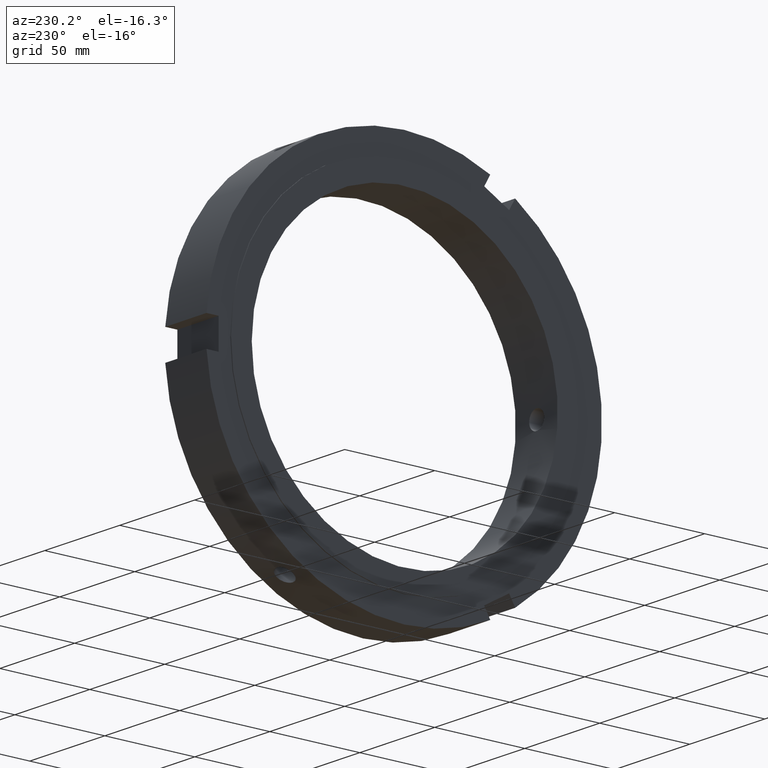
[diagram: clean part render]
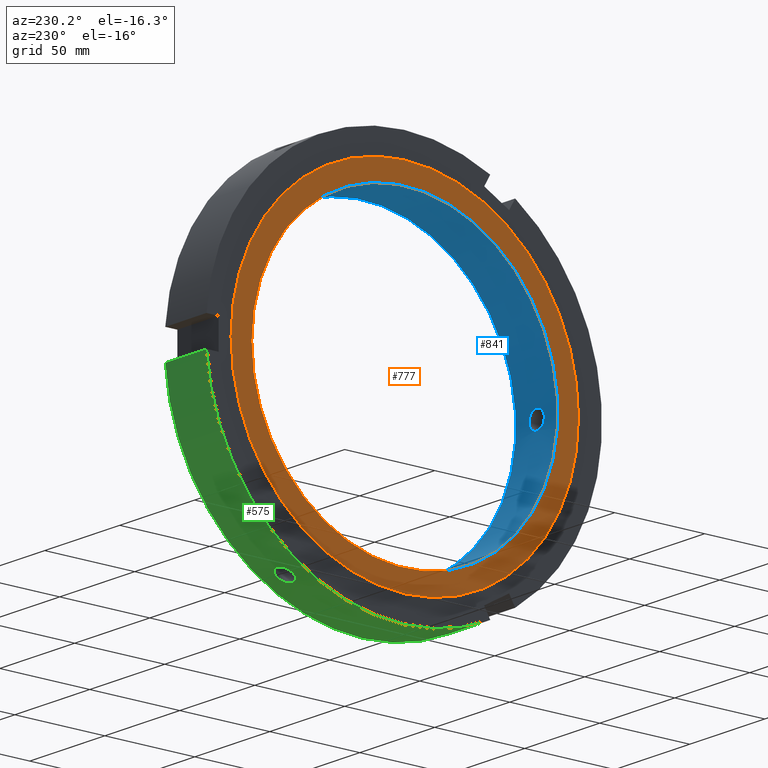
[diagram: same view with three faces highlighted in distinct colors, each labeled with its STEP entity id]
A machine part, auxiliary view with three faces highlighted in distinct colors.
Their STEP definitions:

[orange] entity #777 — the highlighted planar face has unit normal (-1, 0, 0).
#750=CARTESIAN_POINT('',(-2.699753E-014,90.750000000000000,0.0));
#751=DIRECTION('',(-1.0,0.0,0.0));
#752=DIRECTION('',(0.0,0.0,1.0));
#753=AXIS2_PLACEMENT_3D('',#750,#751,#752);
#754=PLANE('',#753);
#755=CARTESIAN_POINT('',(-2.886580E-014,96.500000000000000,0.0));
#756=VERTEX_POINT('',#755);
#757=CARTESIAN_POINT('',(-2.886580E-014,0.0,0.0));
#758=DIRECTION('',(1.0,0.0,0.0));
#759=DIRECTION('',(0.0,1.0,0.0));
#760=AXIS2_PLACEMENT_3D('',#757,#758,#759);
#761=CIRCLE('',#760,96.500000000000000);
#762=EDGE_CURVE('',#756,#756,#761,.T.);
#763=ORIENTED_EDGE('',*,*,#762,.F.);
#764=EDGE_LOOP('',(#763));
#765=FACE_OUTER_BOUND('',#764,.T.);
#766=CARTESIAN_POINT('',(-2.512926E-014,85.0,0.0));
#767=VERTEX_POINT('',#766);
#768=CARTESIAN_POINT('',(-2.512747E-014,0.0,0.0));
#769=DIRECTION('',(1.0,0.0,0.0));
#770=DIRECTION('',(0.0,1.0,0.0));
#771=AXIS2_PLACEMENT_3D('',#768,#769,#770);
#772=CIRCLE('',#771,85.0);
#773=EDGE_CURVE('',#767,#767,#772,.T.);
#774=ORIENTED_EDGE('',*,*,#773,.T.);
#775=EDGE_LOOP('',(#774));
#776=FACE_BOUND('',#775,.T.);
#777=ADVANCED_FACE('',(#765,#776),#754,.T.);

[blue] entity #841 — the highlighted cylindrical surface (bore or boss wall) has radius 85 mm, axis along (1, 0, 0).
#216=CARTESIAN_POINT('',(13.999999999999979,46.800863403901978,70.955473253649060));
#217=VERTEX_POINT('',#216);
#218=CARTESIAN_POINT('',(13.999999999999977,46.800863403901971,70.955473253649075));
#219=CARTESIAN_POINT('',(13.365373405889859,46.800863403901971,70.955473253649075));
#220=CARTESIAN_POINT('',(12.688548186485264,46.694924973786485,71.025704330470830));
#221=CARTESIAN_POINT('',(11.443637708133036,46.262478584167241,71.308132559299423));
#222=CARTESIAN_POINT('',(10.875539751588633,45.935773196720234,71.519971297160197));
#223=CARTESIAN_POINT('',(9.978439307261642,45.177733098731082,72.001208221922468));
#224=CARTESIAN_POINT('',(9.589584629192579,44.695790524823451,72.302655281288466));
#225=CARTESIAN_POINT('',(9.073860837126688,43.631831863610628,72.949646329413042));
#226=CARTESIAN_POINT('',(8.946999999999981,43.049602520198327,73.294846158693474));
#227=CARTESIAN_POINT('',(8.946999999999978,41.950397479801723,73.929472484661034));
#228=CARTESIAN_POINT('',(9.073860837126691,41.360330986556654,74.261097972244627));
#229=CARTESIAN_POINT('',(9.589584629192586,40.268040972253239,74.859017677369124));
#230=CARTESIAN_POINT('',(9.978439307261640,39.766008873992369,75.125668659855393));
#231=CARTESIAN_POINT('',(10.875539751588629,38.970225422914552,75.541532179420102));
#232=CARTESIAN_POINT('',(11.443637708133032,38.623415000698017,75.718547975572065));
#233=CARTESIAN_POINT('',(12.688548186485267,38.162601784976985,75.951843420342911));
#234=CARTESIAN_POINT('',(13.365373405889859,38.048810673256426,76.008473253649072));
#235=CARTESIAN_POINT('',(14.634626594110101,38.048810673256426,76.008473253649072));
#236=CARTESIAN_POINT('',(15.311451813514687,38.162601784976985,75.951843420342925));
#237=CARTESIAN_POINT('',(16.556362291866918,38.623415000698003,75.718547975572079));
#238=CARTESIAN_POINT('',(17.124460248411324,38.970225422914552,75.541532179420102));
#239=CARTESIAN_POINT('',(18.021560692738316,39.766008873992369,75.125668659855393));
#240=CARTESIAN_POINT('',(18.410415370807375,40.268040972253246,74.859017677369110));
#241=CARTESIAN_POINT('',(18.926139162873270,41.360330986556662,74.261097972244613));
#242=CARTESIAN_POINT('',(19.052999999999976,41.950397479801723,73.929472484661034));
#243=CARTESIAN_POINT('',(19.052999999999976,43.049602520198327,73.294846158693474));
#244=CARTESIAN_POINT('',(18.926139162873270,43.631831863610643,72.949646329413028));
#245=CARTESIAN_POINT('',(18.410415370807371,44.695790524823458,72.302655281288452));
#246=CARTESIAN_POINT('',(18.021560692738319,45.177733098731082,72.001208221922468));
#247=CARTESIAN_POINT('',(17.124460248411324,45.935773196720234,71.519971297160197));
#248=CARTESIAN_POINT('',(16.556362291866922,46.262478584167241,71.308132559299423));
#249=CARTESIAN_POINT('',(15.311451813514694,46.694924973786485,71.025704330470830));
#250=CARTESIAN_POINT('',(14.634626594110099,46.800863403901971,70.955473253649075));
#251=CARTESIAN_POINT('',(13.999999999999979,46.800863403901971,70.955473253649075));
#252=B_SPLINE_CURVE_WITH_KNOTS('',3,(#218,#219,#220,#221,#222,#223,#224,#225,#226,#227,#228,#229,#230,#231,#232,#233,#234,#235,#236,#237,#238,#239,#240,#241,#242,#243,#244,#245,#246,#247,#248,#249,#250,#251),.UNSPECIFIED.,.T.,.U.,(4,2,2,2,2,2,2,2,2,2,2,2,2,2,2,2,4),(0.0,0.190387978233036,0.380775956466072,0.571163854256343,0.761551752046615,0.951939649836887,1.142327547627159,1.332715525860195,1.523103504093231,1.713491482326267,1.903879460559303,2.094267358349575,2.284655256139847,2.475043153930119,2.665431051720390,2.855819029953426,3.046207008186462),.UNSPECIFIED.);
#253=EDGE_CURVE('',#217,#217,#252,.T.);
#406=CARTESIAN_POINT('',(13.999999999999979,38.048810673256391,-76.008473253649086));
#407=VERTEX_POINT('',#406);
#408=CARTESIAN_POINT('',(13.999999999999979,38.048810673256398,-76.008473253649086));
#409=CARTESIAN_POINT('',(13.365373405889859,38.048810673256398,-76.008473253649086));
#410=CARTESIAN_POINT('',(12.688548186485258,38.162601784976935,-75.951843420342925));
#411=CARTESIAN_POINT('',(11.443637708133028,38.623415000697968,-75.718547975572093));
#412=CARTESIAN_POINT('',(10.875539751588633,38.970225422914517,-75.541532179420102));
#413=CARTESIAN_POINT('',(9.978439307261638,39.766008873992320,-75.125668659855378));
#414=CARTESIAN_POINT('',(9.589584629192586,40.268040972253203,-74.859017677369152));
#415=CARTESIAN_POINT('',(9.073860837126688,41.360330986556605,-74.261097972244656));
#416=CARTESIAN_POINT('',(8.946999999999978,41.950397479801680,-73.929472484661062));
#417=CARTESIAN_POINT('',(8.946999999999981,43.049602520198292,-73.294846158693488));
#418=CARTESIAN_POINT('',(9.073860837126693,43.631831863610593,-72.949646329413056));
#419=CARTESIAN_POINT('',(9.589584629192590,44.695790524823416,-72.302655281288494));
#420=CARTESIAN_POINT('',(9.978439307261638,45.177733098731053,-72.001208221922482));
#421=CARTESIAN_POINT('',(10.875539751588633,45.935773196720206,-71.519971297160211));
#422=CARTESIAN_POINT('',(11.443637708133039,46.262478584167191,-71.308132559299480));
#423=CARTESIAN_POINT('',(12.688548186485267,46.694924973786442,-71.025704330470887));
#424=CARTESIAN_POINT('',(13.365373405889862,46.800863403901914,-70.955473253649075));
#425=CARTESIAN_POINT('',(14.634626594110095,46.800863403901914,-70.955473253649075));
#426=CARTESIAN_POINT('',(15.311451813514685,46.694924973786442,-71.025704330470887));
#427=CARTESIAN_POINT('',(16.556362291866918,46.262478584167191,-71.308132559299480));
#428=CARTESIAN_POINT('',(17.124460248411324,45.935773196720206,-71.519971297160211));
#429=CARTESIAN_POINT('',(18.021560692738319,45.177733098731053,-72.001208221922482));
#430=CARTESIAN_POINT('',(18.410415370807367,44.695790524823416,-72.302655281288494));
#431=CARTESIAN_POINT('',(18.926139162873262,43.631831863610593,-72.949646329413056));
#432=CARTESIAN_POINT('',(19.052999999999976,43.049602520198292,-73.294846158693488));
#433=CARTESIAN_POINT('',(19.052999999999980,41.950397479801687,-73.929472484661076));
#434=CARTESIAN_POINT('',(18.926139162873273,41.360330986556619,-74.261097972244642));
#435=CARTESIAN_POINT('',(18.410415370807375,40.268040972253203,-74.859017677369138));
#436=CARTESIAN_POINT('',(18.021560692738319,39.766008873992327,-75.125668659855393));
#437=CARTESIAN_POINT('',(17.124460248411328,38.970225422914517,-75.541532179420102));
#438=CARTESIAN_POINT('',(16.556362291866932,38.623415000697968,-75.718547975572093));
#439=CARTESIAN_POINT('',(15.311451813514701,38.162601784976935,-75.951843420342925));
#440=CARTESIAN_POINT('',(14.634626594110102,38.048810673256398,-76.008473253649086));
#441=CARTESIAN_POINT('',(13.999999999999982,38.048810673256398,-76.008473253649086));
#442=B_SPLINE_CURVE_WITH_KNOTS('',3,(#408,#409,#410,#411,#412,#413,#414,#415,#416,#417,#418,#419,#420,#421,#422,#423,#424,#425,#426,#427,#428,#429,#430,#431,#432,#433,#434,#435,#436,#437,#438,#439,#440,#441),.UNSPECIFIED.,.T.,.U.,(4,2,2,2,2,2,2,2,2,2,2,2,2,2,2,2,4),(0.0,0.190387978233036,0.380775956466072,0.571163854256344,0.761551752046616,0.951939649836888,1.142327547627160,1.332715525860196,1.523103504093231,1.713491482326266,1.903879460559302,2.094267358349574,2.284655256139846,2.475043153930118,2.665431051720390,2.855819029953426,3.046207008186462),.UNSPECIFIED.);
#443=EDGE_CURVE('',#407,#407,#442,.T.);
#508=CARTESIAN_POINT('',(27.999999999999986,85.0,0.0));
#509=VERTEX_POINT('',#508);
#510=CARTESIAN_POINT('',(27.999999999999979,0.0,0.0));
#511=DIRECTION('',(1.0,0.0,0.0));
#512=DIRECTION('',(0.0,1.0,0.0));
#513=AXIS2_PLACEMENT_3D('',#510,#511,#512);
#514=CIRCLE('',#513,85.0);
#515=EDGE_CURVE('',#509,#509,#514,.T.);
#643=CARTESIAN_POINT('',(13.999999999999979,-84.849674077158355,5.053000000000000));
#644=VERTEX_POINT('',#643);
#645=CARTESIAN_POINT('',(13.999999999999979,-84.849674077158369,5.053000000000000));
#646=CARTESIAN_POINT('',(13.365373405889859,-84.849674077158369,5.053000000000000));
#647=CARTESIAN_POINT('',(12.688548186485262,-84.857526758763427,4.926139089872057));
#648=CARTESIAN_POINT('',(11.443637708133030,-84.885893584865201,4.410415416272630));
#649=CARTESIAN_POINT('',(10.875539751588633,-84.905998619634730,4.021560882259903));
#650=CARTESIAN_POINT('',(9.978439307261640,-84.943741972723373,3.124460437932910));
#651=CARTESIAN_POINT('',(9.589584629192585,-84.963831497076654,2.556362396080651));
#652=CARTESIAN_POINT('',(9.073860837126690,-84.992162850167219,1.311451642831587));
#653=CARTESIAN_POINT('',(8.946999999999978,-85.0,0.634626325967572));
#654=CARTESIAN_POINT('',(8.946999999999980,-85.0,-0.634626325967572));
#655=CARTESIAN_POINT('',(9.073860837126690,-84.992162850167219,-1.311451642831587));
#656=CARTESIAN_POINT('',(9.589584629192585,-84.963831497076654,-2.556362396080651));
#657=CARTESIAN_POINT('',(9.978439307261640,-84.943741972723387,-3.124460437932910));
#658=CARTESIAN_POINT('',(10.875539751588633,-84.905998619634730,-4.021560882259903));
#659=CARTESIAN_POINT('',(11.443637708133030,-84.885893584865201,-4.410415416272630));
#660=CARTESIAN_POINT('',(12.688548186485262,-84.857526758763427,-4.926139089872057));
#661=CARTESIAN_POINT('',(13.365373405889859,-84.849674077158355,-5.053000000000000));
#662=CARTESIAN_POINT('',(14.634626594110095,-84.849674077158355,-5.052999999999999));
#663=CARTESIAN_POINT('',(15.311451813514687,-84.857526758763427,-4.926139089872058));
#664=CARTESIAN_POINT('',(16.556362291866918,-84.885893584865201,-4.410415416272634));
#665=CARTESIAN_POINT('',(17.124460248411324,-84.905998619634715,-4.021560882259903));
#666=CARTESIAN_POINT('',(18.021560692738316,-84.943741972723373,-3.124460437932911));
#667=CARTESIAN_POINT('',(18.410415370807375,-84.963831497076654,-2.556362396080653));
#668=CARTESIAN_POINT('',(18.926139162873270,-84.992162850167219,-1.311451642831589));
#669=CARTESIAN_POINT('',(19.052999999999976,-85.0,-0.634626325967573));
#670=CARTESIAN_POINT('',(19.052999999999976,-85.0,0.634626325967571));
#671=CARTESIAN_POINT('',(18.926139162873270,-84.992162850167219,1.311451642831586));
#672=CARTESIAN_POINT('',(18.410415370807375,-84.963831497076654,2.556362396080650));
#673=CARTESIAN_POINT('',(18.021560692738319,-84.943741972723387,3.124460437932910));
#674=CARTESIAN_POINT('',(17.124460248411324,-84.905998619634730,4.021560882259903));
#675=CARTESIAN_POINT('',(16.556362291866925,-84.885893584865201,4.410415416272632));
#676=CARTESIAN_POINT('',(15.311451813514690,-84.857526758763427,4.926139089872058));
#677=CARTESIAN_POINT('',(14.634626594110099,-84.849674077158369,5.053000000000000));
#678=CARTESIAN_POINT('',(13.999999999999979,-84.849674077158369,5.053000000000000));
#679=B_SPLINE_CURVE_WITH_KNOTS('',3,(#645,#646,#647,#648,#649,#650,#651,#652,#653,#654,#655,#656,#657,#658,#659,#660,#661,#662,#663,#664,#665,#666,#667,#668,#669,#670,#671,#672,#673,#674,#675,#676,#677,#678),.UNSPECIFIED.,.T.,.U.,(4,2,2,2,2,2,2,2,2,2,2,2,2,2,2,2,4),(0.0,0.190387978233036,0.380775956466072,0.571163854256344,0.761551752046615,0.951939649836887,1.142327547627159,1.332715525860195,1.523103504093231,1.713491482326266,1.903879460559302,2.094267358349574,2.284655256139846,2.475043153930117,2.665431051720389,2.855819029953425,3.046207008186461),.UNSPECIFIED.);
#680=EDGE_CURVE('',#644,#644,#679,.T.);
#766=CARTESIAN_POINT('',(-2.512926E-014,85.0,0.0));
#767=VERTEX_POINT('',#766);
#768=CARTESIAN_POINT('',(-2.512747E-014,0.0,0.0));
#769=DIRECTION('',(1.0,0.0,0.0));
#770=DIRECTION('',(0.0,1.0,0.0));
#771=AXIS2_PLACEMENT_3D('',#768,#769,#770);
#772=CIRCLE('',#771,85.0);
#773=EDGE_CURVE('',#767,#767,#772,.T.);
#821=CARTESIAN_POINT('',(13.999999999999979,0.0,0.0));
#822=DIRECTION('',(1.0,0.0,0.0));
#823=DIRECTION('',(0.0,1.0,0.0));
#824=AXIS2_PLACEMENT_3D('',#821,#822,#823);
#825=CYLINDRICAL_SURFACE('',#824,85.0);
#826=ORIENTED_EDGE('',*,*,#773,.F.);
#827=EDGE_LOOP('',(#826));
#828=FACE_OUTER_BOUND('',#827,.T.);
#829=ORIENTED_EDGE('',*,*,#253,.T.);
#830=EDGE_LOOP('',(#829));
#831=FACE_BOUND('',#830,.T.);
#832=ORIENTED_EDGE('',*,*,#443,.T.);
#833=EDGE_LOOP('',(#832));
#834=FACE_BOUND('',#833,.T.);
#835=ORIENTED_EDGE('',*,*,#680,.T.);
#836=EDGE_LOOP('',(#835));
#837=FACE_BOUND('',#836,.T.);
#838=ORIENTED_EDGE('',*,*,#515,.T.);
#839=EDGE_LOOP('',(#838));
#840=FACE_BOUND('',#839,.T.);
#841=ADVANCED_FACE('',(#828,#831,#834,#837,#840),#825,.F.);

[green] entity #575 — the highlighted cylindrical surface (partial cylindrical patch) has radius 110 mm, axis along (1, 0, 0).
#113=CARTESIAN_POINT('',(0.499999999999967,-47.926149377334461,-99.010525732678687));
#114=VERTEX_POINT('',#113);
#123=CARTESIAN_POINT('',(27.999999999999979,-47.926149377334461,-99.010525732678687));
#124=VERTEX_POINT('',#123);
#125=CARTESIAN_POINT('',(27.999999999999979,-47.926149377334468,-99.010525732678644));
#126=DIRECTION('',(-1.0,0.0,0.0));
#127=VECTOR('',#126,27.500000000000011);
#128=LINE('',#125,#127);
#129=EDGE_CURVE('',#124,#114,#128,.T.);
#365=CARTESIAN_POINT('',(13.999999999999979,50.565913878447269,-97.688731968622932));
#366=VERTEX_POINT('',#365);
#367=CARTESIAN_POINT('',(13.999999999999979,50.565913878447269,-97.688731968622932));
#368=CARTESIAN_POINT('',(14.634561778216643,50.565913878447269,-97.688731968622932));
#369=CARTESIAN_POINT('',(15.311359139751751,50.678787847048611,-97.630564221676849));
#370=CARTESIAN_POINT('',(16.556287499265132,51.136354332595374,-97.391682773220808));
#371=CARTESIAN_POINT('',(17.124426060760278,51.480885004781683,-97.210698586714571));
#372=CARTESIAN_POINT('',(18.021595002424156,52.272434674828517,-96.787364948622297));
#373=CARTESIAN_POINT('',(18.410459459980782,52.772217769826071,-96.516737476758848));
#374=CARTESIAN_POINT('',(18.926164429839837,53.861302183194638,-95.913230102172932));
#375=CARTESIAN_POINT('',(19.052999999999976,54.450453462469625,-95.580075257663637));
#376=CARTESIAN_POINT('',(19.052999999999976,55.549546537530347,-94.945513574912866));
#377=CARTESIAN_POINT('',(18.926164429839833,56.132642735906742,-94.601871022643280));
#378=CARTESIAN_POINT('',(18.410459459980771,57.199837660353680,-93.960449941093387));
#379=CARTESIAN_POINT('',(18.021595002424156,57.684099473448178,-93.662938820375246));
#380=CARTESIAN_POINT('',(17.124426060760285,58.446491993335982,-93.189103516803613));
#381=CARTESIAN_POINT('',(16.556287499265132,58.775494232626812,-92.981223295560483));
#382=CARTESIAN_POINT('',(15.311359139751751,59.211154878255947,-92.704399819384633));
#383=CARTESIAN_POINT('',(14.634561778216643,59.317966609092792,-92.635731968622949));
#384=CARTESIAN_POINT('',(13.365438221783315,59.317966609092792,-92.635731968622935));
#385=CARTESIAN_POINT('',(12.688640860248199,59.211154878255947,-92.704399819384633));
#386=CARTESIAN_POINT('',(11.443712500734817,58.775494232626812,-92.981223295560483));
#387=CARTESIAN_POINT('',(10.875573939239672,58.446491993335968,-93.189103516803613));
#388=CARTESIAN_POINT('',(9.978404997575801,57.684099473448178,-93.662938820375246));
#389=CARTESIAN_POINT('',(9.589540540019190,57.199837660353694,-93.960449941093387));
#390=CARTESIAN_POINT('',(9.073835570160124,56.132642735906764,-94.601871022643280));
#391=CARTESIAN_POINT('',(8.946999999999980,55.549546537530347,-94.945513574912866));
#392=CARTESIAN_POINT('',(8.946999999999980,54.450453462469625,-95.580075257663637));
#393=CARTESIAN_POINT('',(9.073835570160121,53.861302183194638,-95.913230102172932));
#394=CARTESIAN_POINT('',(9.589540540019177,52.772217769826071,-96.516737476758848));
#395=CARTESIAN_POINT('',(9.978404997575805,52.272434674828517,-96.787364948622297));
#396=CARTESIAN_POINT('',(10.875573939239679,51.480885004781697,-97.210698586714571));
#397=CARTESIAN_POINT('',(11.443712500734824,51.136354332595374,-97.391682773220822));
#398=CARTESIAN_POINT('',(12.688640860248206,50.678787847048611,-97.630564221676863));
#399=CARTESIAN_POINT('',(13.365438221783313,50.565913878447276,-97.688731968622946));
#400=CARTESIAN_POINT('',(13.999999999999977,50.565913878447276,-97.688731968622946));
#401=B_SPLINE_CURVE_WITH_KNOTS('',3,(#367,#368,#369,#370,#371,#372,#373,#374,#375,#376,#377,#378,#379,#380,#381,#382,#383,#384,#385,#386,#387,#388,#389,#390,#391,#392,#393,#394,#395,#396,#397,#398,#399,#400),.UNSPECIFIED.,.T.,.U.,(4,2,2,2,2,2,2,2,2,2,2,2,2,2,2,2,4),(0.0,0.190368533464999,0.380737066929999,0.571105571755228,0.761474076580458,0.951842581405687,1.142211086230916,1.332579619695915,1.522948153160915,1.713316686625914,1.903685220090913,2.094053724916142,2.284422229741371,2.474790734566601,2.665159239391830,2.855527772856830,3.045896306321829),.UNSPECIFIED.);
#402=EDGE_CURVE('',#366,#366,#401,.T.);
#456=CARTESIAN_POINT('',(27.999999999999979,109.708705215219820,-7.999999999999994));
#457=VERTEX_POINT('',#456);
#458=CARTESIAN_POINT('',(27.999999999999979,0.0,0.0));
#459=DIRECTION('',(1.0,0.0,0.0));
#460=DIRECTION('',(0.0,1.0,0.0));
#461=AXIS2_PLACEMENT_3D('',#458,#459,#460);
#462=CIRCLE('',#461,110.0);
#463=EDGE_CURVE('',#124,#457,#462,.T.);
#548=CARTESIAN_POINT('',(14.249999999999973,0.0,0.0));
#549=DIRECTION('',(1.0,0.0,0.0));
#550=DIRECTION('',(0.0,1.0,0.0));
#551=AXIS2_PLACEMENT_3D('',#548,#549,#550);
#552=CYLINDRICAL_SURFACE('',#551,110.0);
#553=ORIENTED_EDGE('',*,*,#129,.T.);
#554=CARTESIAN_POINT('',(0.499999999999967,109.708705215219820,-7.999999999999993));
#555=VERTEX_POINT('',#554);
#556=CARTESIAN_POINT('',(0.499999999999967,0.0,0.0));
#557=DIRECTION('',(1.0,0.0,0.0));
#558=DIRECTION('',(0.0,1.0,0.0));
#559=AXIS2_PLACEMENT_3D('',#556,#557,#558);
#560=CIRCLE('',#559,110.0);
#561=EDGE_CURVE('',#114,#555,#560,.T.);
#562=ORIENTED_EDGE('',*,*,#561,.T.);
#563=CARTESIAN_POINT('',(0.499999999999968,109.708705215219820,-7.999999999999993));
#564=DIRECTION('',(1.0,0.0,0.0));
#565=VECTOR('',#564,27.500000000000011);
#566=LINE('',#563,#565);
#567=EDGE_CURVE('',#555,#457,#566,.T.);
#568=ORIENTED_EDGE('',*,*,#567,.T.);
#569=ORIENTED_EDGE('',*,*,#463,.F.);
#570=EDGE_LOOP('',(#553,#562,#568,#569));
#571=FACE_OUTER_BOUND('',#570,.T.);
#572=ORIENTED_EDGE('',*,*,#402,.T.);
#573=EDGE_LOOP('',(#572));
#574=FACE_BOUND('',#573,.T.);
#575=ADVANCED_FACE('',(#571,#574),#552,.T.);